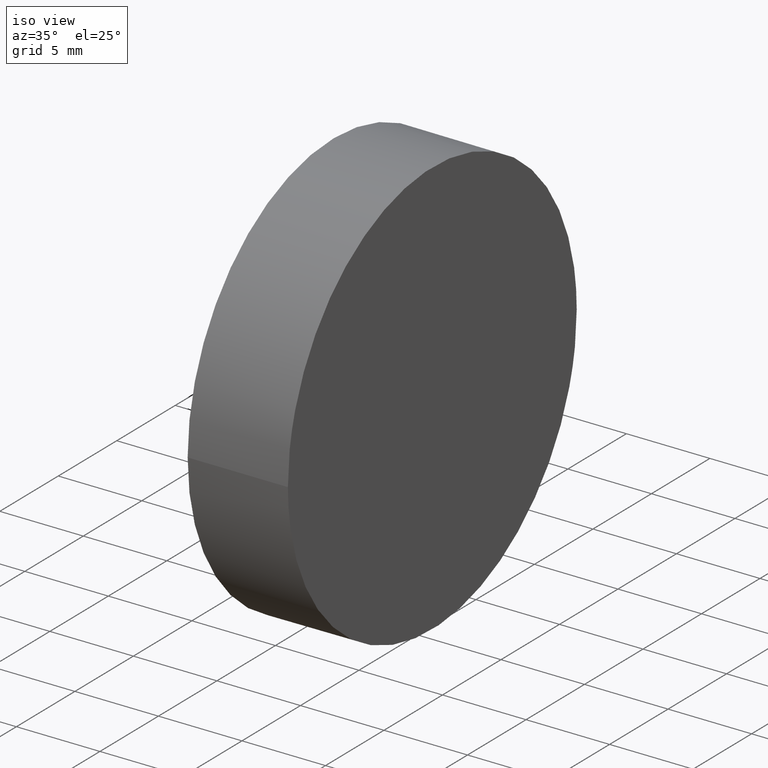
[diagram: clean part render]
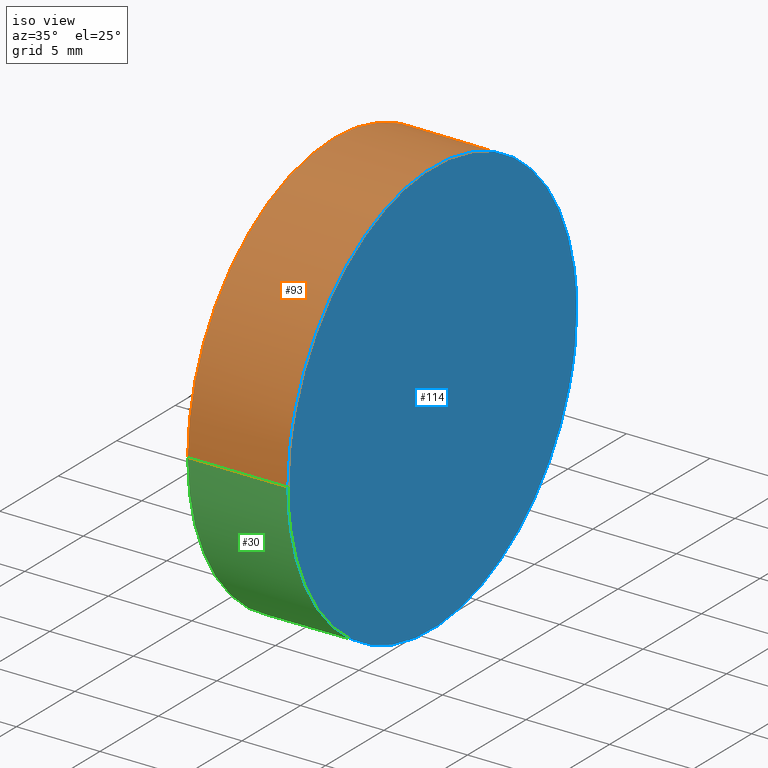
[diagram: same view with three faces highlighted in distinct colors, each labeled with its STEP entity id]
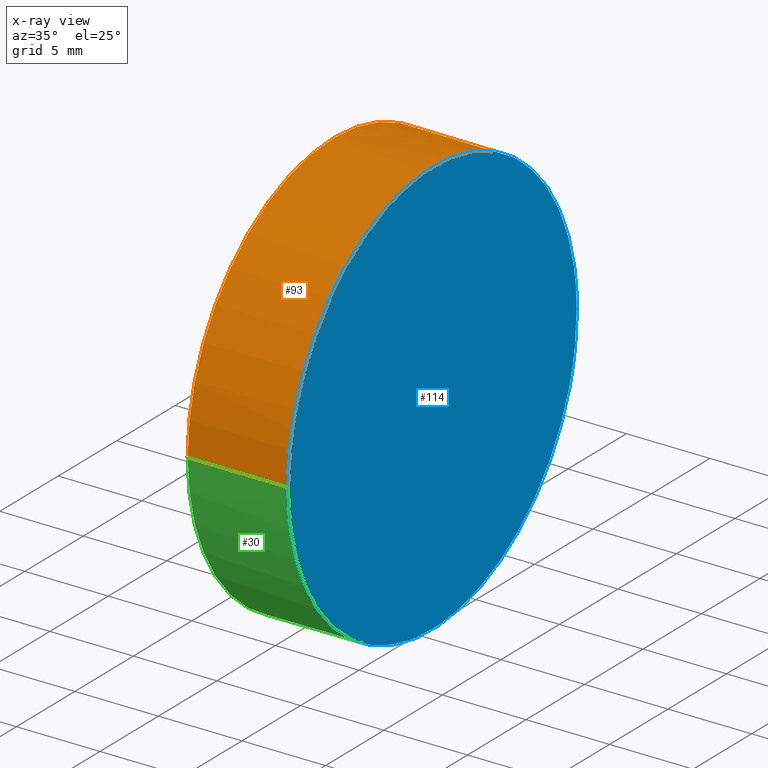
[diagram: x-ray of the same camera — body ghosted, the three highlighted faces saturated]
A machine part, iso view with three faces highlighted in distinct colors.
The next image is the same camera in x-ray (body ghosted, the three faces saturated) — at least one of them is partly hidden behind the body in this view.
Their STEP definitions:

[orange] entity #93 — the highlighted cylindrical surface (partial cylindrical patch) has radius 12.5 mm, axis along (-1, -0, -0).
#4 = DIRECTION ( 'NONE',  ( -1.000000000000000000, -1.224646799147353200E-016, -0.0000000000000000000 ) ) ;
#5 = CARTESIAN_POINT ( 'NONE',  ( 6.000000000000003600, -12.49999999999999800, 12.50000000000000000 ) ) ;
#6 = LINE ( 'NONE', #88, #131 ) ;
#11 = DIRECTION ( 'NONE',  ( -1.000000000000000000, -1.224646799147353200E-016, 0.0000000000000000000 ) ) ;
#13 = VERTEX_POINT ( 'NONE', #79 ) ;
#15 = EDGE_CURVE ( 'NONE', #13, #85, #6, .T. ) ;
#17 = CARTESIAN_POINT ( 'NONE',  ( -1.530808498934191500E-015, 12.50000000000000000, 12.50000000000000200 ) ) ;
#23 = DIRECTION ( 'NONE',  ( 1.224646799147353200E-016, -1.000000000000000000, 0.0000000000000000000 ) ) ;
#27 = DIRECTION ( 'NONE',  ( 1.387778780781445700E-016, -1.000000000000000000, 0.0000000000000000000 ) ) ;
#35 = CYLINDRICAL_SURFACE ( 'NONE', #76, 12.50000000000000000 ) ;
#38 = ORIENTED_EDGE ( 'NONE', *, *, #94, .T. ) ;
#40 =( BOUNDED_CURVE ( )  B_SPLINE_CURVE ( 3, ( #5, #124, #104, #43 ),
 .UNSPECIFIED., .F., .T. ) 
 B_SPLINE_CURVE_WITH_KNOTS ( ( 4, 4 ),
 ( 3.141592653589793100, 6.283185307179586200 ),
 .UNSPECIFIED. ) 
 CURVE ( )  GEOMETRIC_REPRESENTATION_ITEM ( )  RATIONAL_B_SPLINE_CURVE ( ( 1.000000000000000000, 0.3333333333333333700, 0.3333333333333333700, 1.000000000000000000 ) ) 
 REPRESENTATION_ITEM ( '' )  );
#42 = VECTOR ( 'NONE', #100, 1000.000000000000000 ) ;
#43 = CARTESIAN_POINT ( 'NONE',  ( 5.781828305231207400, 12.50000000000000200, 12.50000000000000200 ) ) ;
#47 = VERTEX_POINT ( 'NONE', #17 ) ;
#57 = CARTESIAN_POINT ( 'NONE',  ( 9.999999999999998200, 12.50000000000000200, 12.50000000000000200 ) ) ;
#60 = CIRCLE ( 'NONE', #138, 12.50000000000000000 ) ;
#70 = ORIENTED_EDGE ( 'NONE', *, *, #15, .F. ) ;
#75 = VERTEX_POINT ( 'NONE', #111 ) ;
#76 = AXIS2_PLACEMENT_3D ( 'NONE', #77, #4, #27 ) ;
#77 = CARTESIAN_POINT ( 'NONE',  ( 10.00000000000000000, 1.224646799147353300E-015, 12.50000000000000000 ) ) ;
#79 = CARTESIAN_POINT ( 'NONE',  ( 6.000000000000003600, -12.49999999999999800, 12.50000000000000000 ) ) ;
#80 = CARTESIAN_POINT ( 'NONE',  ( 1.530808498934191500E-015, -12.50000000000000000, 12.50000000000000000 ) ) ;
#81 = EDGE_LOOP ( 'NONE', ( #95, #38, #89, #70 ) ) ;
#85 = VERTEX_POINT ( 'NONE', #80 ) ;
#88 = CARTESIAN_POINT ( 'NONE',  ( 10.00000000000000200, -12.49999999999999800, 12.50000000000000000 ) ) ;
#89 = ORIENTED_EDGE ( 'NONE', *, *, #113, .F. ) ;
#93 = ADVANCED_FACE ( 'NONE', ( #134 ), #35, .T. ) ;
#94 = EDGE_CURVE ( 'NONE', #75, #47, #109, .T. ) ;
#95 = ORIENTED_EDGE ( 'NONE', *, *, #120, .T. ) ;
#100 = DIRECTION ( 'NONE',  ( -1.000000000000000000, -1.224646799147353200E-016, -0.0000000000000000000 ) ) ;
#104 = CARTESIAN_POINT ( 'NONE',  ( 5.781828305231207400, 12.50000000000000000, 37.50000000000000000 ) ) ;
#109 = LINE ( 'NONE', #57, #42 ) ;
#111 = CARTESIAN_POINT ( 'NONE',  ( 5.781828305231207400, 12.50000000000000200, 12.50000000000000200 ) ) ;
#113 = EDGE_CURVE ( 'NONE', #85, #47, #60, .T. ) ;
#118 = CARTESIAN_POINT ( 'NONE',  ( 0.0000000000000000000, 0.0000000000000000000, 12.50000000000000000 ) ) ;
#120 = EDGE_CURVE ( 'NONE', #13, #75, #40, .T. ) ;
#121 = DIRECTION ( 'NONE',  ( -1.000000000000000000, -1.224646799147353200E-016, -0.0000000000000000000 ) ) ;
#124 = CARTESIAN_POINT ( 'NONE',  ( 6.000000000000003600, -12.50000000000000500, 37.50000000000000000 ) ) ;
#131 = VECTOR ( 'NONE', #121, 1000.000000000000000 ) ;
#134 = FACE_OUTER_BOUND ( 'NONE', #81, .T. ) ;
#138 = AXIS2_PLACEMENT_3D ( 'NONE', #118, #11, #23 ) ;

[blue] entity #114 — the highlighted planar face has unit normal (-1, -0.0087, 0).
#5 = CARTESIAN_POINT ( 'NONE',  ( 6.000000000000003600, -12.49999999999999800, 12.50000000000000000 ) ) ;
#13 = VERTEX_POINT ( 'NONE', #79 ) ;
#16 = CARTESIAN_POINT ( 'NONE',  ( 6.000000000000003600, -12.50000000000000000, -12.50000000000000500 ) ) ;
#22 = CARTESIAN_POINT ( 'NONE',  ( 5.781828305231207400, 12.50000000000000000, -12.50000000000000500 ) ) ;
#28 = ORIENTED_EDGE ( 'NONE', *, *, #101, .F. ) ;
#40 =( BOUNDED_CURVE ( )  B_SPLINE_CURVE ( 3, ( #5, #124, #104, #43 ),
 .UNSPECIFIED., .F., .T. ) 
 B_SPLINE_CURVE_WITH_KNOTS ( ( 4, 4 ),
 ( 3.141592653589793100, 6.283185307179586200 ),
 .UNSPECIFIED. ) 
 CURVE ( )  GEOMETRIC_REPRESENTATION_ITEM ( )  RATIONAL_B_SPLINE_CURVE ( ( 1.000000000000000000, 0.3333333333333333700, 0.3333333333333333700, 1.000000000000000000 ) ) 
 REPRESENTATION_ITEM ( '' )  );
#43 = CARTESIAN_POINT ( 'NONE',  ( 5.781828305231207400, 12.50000000000000200, 12.50000000000000200 ) ) ;
#44 = AXIS2_PLACEMENT_3D ( 'NONE', #78, #110, #91 ) ;
#52 = CARTESIAN_POINT ( 'NONE',  ( 5.781828305231207400, 12.50000000000000200, 12.50000000000000200 ) ) ;
#53 = FACE_OUTER_BOUND ( 'NONE', #105, .T. ) ;
#71 =( BOUNDED_CURVE ( )  B_SPLINE_CURVE ( 3, ( #52, #22, #16, #96 ),
 .UNSPECIFIED., .F., .T. ) 
 B_SPLINE_CURVE_WITH_KNOTS ( ( 4, 4 ),
 ( 0.0000000000000000000, 3.141592653589793100 ),
 .UNSPECIFIED. ) 
 CURVE ( )  GEOMETRIC_REPRESENTATION_ITEM ( )  RATIONAL_B_SPLINE_CURVE ( ( 1.000000000000000000, 0.3333333333333333700, 0.3333333333333333700, 1.000000000000000000 ) ) 
 REPRESENTATION_ITEM ( '' )  );
#75 = VERTEX_POINT ( 'NONE', #111 ) ;
#78 = CARTESIAN_POINT ( 'NONE',  ( 6.000000000000003600, -12.50000000000000200, 25.00000000000000000 ) ) ;
#79 = CARTESIAN_POINT ( 'NONE',  ( 6.000000000000003600, -12.49999999999999800, 12.50000000000000000 ) ) ;
#91 = DIRECTION ( 'NONE',  ( 0.008726535498366981900, -0.9999619230641713100, 0.0000000000000000000 ) ) ;
#96 = CARTESIAN_POINT ( 'NONE',  ( 6.000000000000003600, -12.49999999999999800, 12.50000000000000000 ) ) ;
#101 = EDGE_CURVE ( 'NONE', #75, #13, #71, .T. ) ;
#104 = CARTESIAN_POINT ( 'NONE',  ( 5.781828305231207400, 12.50000000000000000, 37.50000000000000000 ) ) ;
#105 = EDGE_LOOP ( 'NONE', ( #119, #28 ) ) ;
#110 = DIRECTION ( 'NONE',  ( -0.9999619230641714200, -0.008726535498366983600, 0.0000000000000000000 ) ) ;
#111 = CARTESIAN_POINT ( 'NONE',  ( 5.781828305231207400, 12.50000000000000200, 12.50000000000000200 ) ) ;
#114 = ADVANCED_FACE ( 'NONE', ( #53 ), #127, .F. ) ;
#119 = ORIENTED_EDGE ( 'NONE', *, *, #120, .F. ) ;
#120 = EDGE_CURVE ( 'NONE', #13, #75, #40, .T. ) ;
#124 = CARTESIAN_POINT ( 'NONE',  ( 6.000000000000003600, -12.50000000000000500, 37.50000000000000000 ) ) ;
#127 = PLANE ( 'NONE',  #44 ) ;

[green] entity #30 — the highlighted cylindrical surface (partial cylindrical patch) has radius 12.5 mm, axis along (-1, -0, -0).
#2 = ORIENTED_EDGE ( 'NONE', *, *, #74, .F. ) ;
#6 = LINE ( 'NONE', #88, #131 ) ;
#10 = DIRECTION ( 'NONE',  ( -1.000000000000000000, -1.224646799147353200E-016, -0.0000000000000000000 ) ) ;
#12 = CARTESIAN_POINT ( 'NONE',  ( 0.0000000000000000000, 0.0000000000000000000, 12.50000000000000000 ) ) ;
#13 = VERTEX_POINT ( 'NONE', #79 ) ;
#15 = EDGE_CURVE ( 'NONE', #13, #85, #6, .T. ) ;
#16 = CARTESIAN_POINT ( 'NONE',  ( 6.000000000000003600, -12.50000000000000000, -12.50000000000000500 ) ) ;
#17 = CARTESIAN_POINT ( 'NONE',  ( -1.530808498934191500E-015, 12.50000000000000000, 12.50000000000000200 ) ) ;
#22 = CARTESIAN_POINT ( 'NONE',  ( 5.781828305231207400, 12.50000000000000000, -12.50000000000000500 ) ) ;
#30 = ADVANCED_FACE ( 'NONE', ( #116 ), #99, .T. ) ;
#34 = AXIS2_PLACEMENT_3D ( 'NONE', #97, #10, #123 ) ;
#37 = DIRECTION ( 'NONE',  ( 1.224646799147353200E-016, -1.000000000000000000, 0.0000000000000000000 ) ) ;
#42 = VECTOR ( 'NONE', #100, 1000.000000000000000 ) ;
#47 = VERTEX_POINT ( 'NONE', #17 ) ;
#52 = CARTESIAN_POINT ( 'NONE',  ( 5.781828305231207400, 12.50000000000000200, 12.50000000000000200 ) ) ;
#55 = DIRECTION ( 'NONE',  ( -1.000000000000000000, -1.224646799147353200E-016, 0.0000000000000000000 ) ) ;
#56 = ORIENTED_EDGE ( 'NONE', *, *, #94, .F. ) ;
#57 = CARTESIAN_POINT ( 'NONE',  ( 9.999999999999998200, 12.50000000000000200, 12.50000000000000200 ) ) ;
#62 = EDGE_LOOP ( 'NONE', ( #56, #69, #130, #2 ) ) ;
#69 = ORIENTED_EDGE ( 'NONE', *, *, #101, .T. ) ;
#71 =( BOUNDED_CURVE ( )  B_SPLINE_CURVE ( 3, ( #52, #22, #16, #96 ),
 .UNSPECIFIED., .F., .T. ) 
 B_SPLINE_CURVE_WITH_KNOTS ( ( 4, 4 ),
 ( 0.0000000000000000000, 3.141592653589793100 ),
 .UNSPECIFIED. ) 
 CURVE ( )  GEOMETRIC_REPRESENTATION_ITEM ( )  RATIONAL_B_SPLINE_CURVE ( ( 1.000000000000000000, 0.3333333333333333700, 0.3333333333333333700, 1.000000000000000000 ) ) 
 REPRESENTATION_ITEM ( '' )  );
#72 = CIRCLE ( 'NONE', #102, 12.50000000000000000 ) ;
#74 = EDGE_CURVE ( 'NONE', #47, #85, #72, .T. ) ;
#75 = VERTEX_POINT ( 'NONE', #111 ) ;
#79 = CARTESIAN_POINT ( 'NONE',  ( 6.000000000000003600, -12.49999999999999800, 12.50000000000000000 ) ) ;
#80 = CARTESIAN_POINT ( 'NONE',  ( 1.530808498934191500E-015, -12.50000000000000000, 12.50000000000000000 ) ) ;
#85 = VERTEX_POINT ( 'NONE', #80 ) ;
#88 = CARTESIAN_POINT ( 'NONE',  ( 10.00000000000000200, -12.49999999999999800, 12.50000000000000000 ) ) ;
#94 = EDGE_CURVE ( 'NONE', #75, #47, #109, .T. ) ;
#96 = CARTESIAN_POINT ( 'NONE',  ( 6.000000000000003600, -12.49999999999999800, 12.50000000000000000 ) ) ;
#97 = CARTESIAN_POINT ( 'NONE',  ( 10.00000000000000000, 1.224646799147353300E-015, 12.50000000000000000 ) ) ;
#99 = CYLINDRICAL_SURFACE ( 'NONE', #34, 12.50000000000000000 ) ;
#100 = DIRECTION ( 'NONE',  ( -1.000000000000000000, -1.224646799147353200E-016, -0.0000000000000000000 ) ) ;
#101 = EDGE_CURVE ( 'NONE', #75, #13, #71, .T. ) ;
#102 = AXIS2_PLACEMENT_3D ( 'NONE', #12, #55, #37 ) ;
#109 = LINE ( 'NONE', #57, #42 ) ;
#111 = CARTESIAN_POINT ( 'NONE',  ( 5.781828305231207400, 12.50000000000000200, 12.50000000000000200 ) ) ;
#116 = FACE_OUTER_BOUND ( 'NONE', #62, .T. ) ;
#121 = DIRECTION ( 'NONE',  ( -1.000000000000000000, -1.224646799147353200E-016, -0.0000000000000000000 ) ) ;
#123 = DIRECTION ( 'NONE',  ( 1.387778780781445700E-016, -1.000000000000000000, 0.0000000000000000000 ) ) ;
#130 = ORIENTED_EDGE ( 'NONE', *, *, #15, .T. ) ;
#131 = VECTOR ( 'NONE', #121, 1000.000000000000000 ) ;